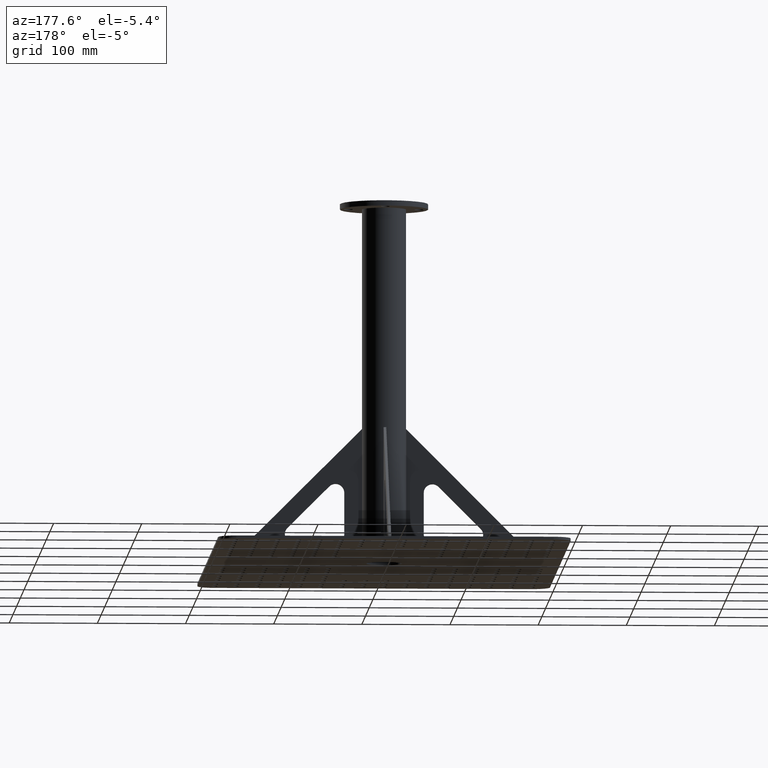
[diagram: clean part render]
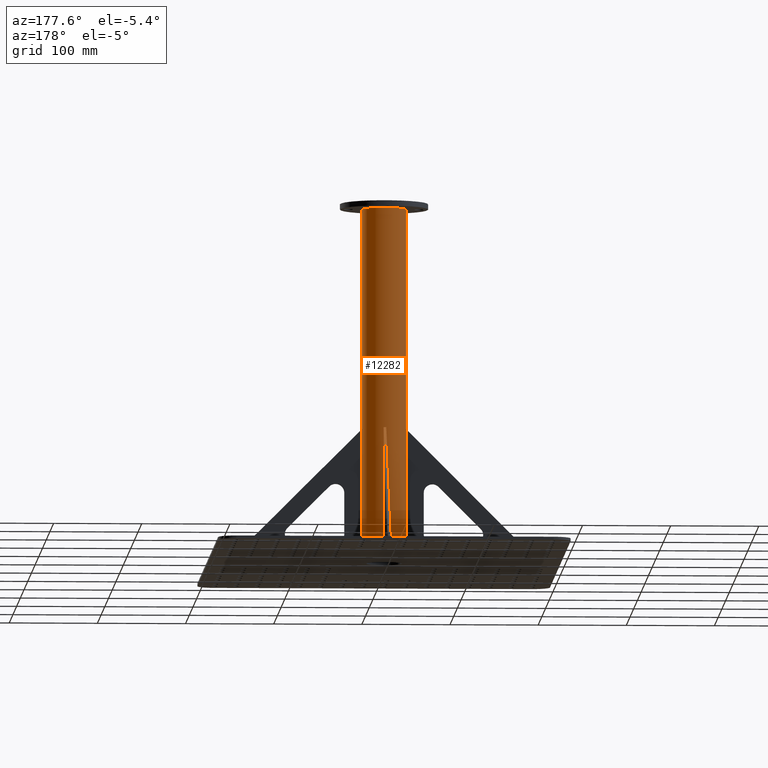
[diagram: same view with one face highlighted and labeled with its STEP entity id]
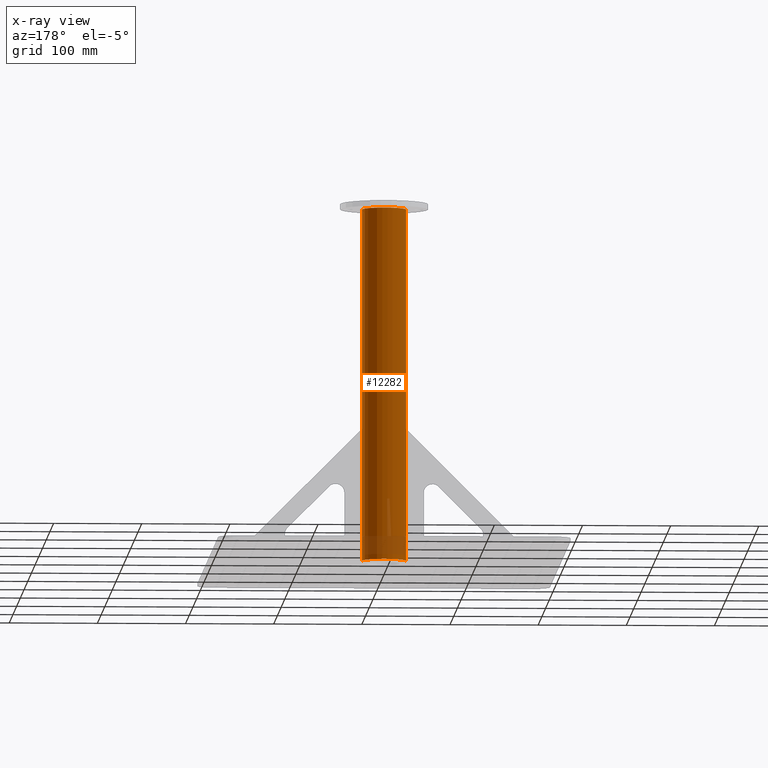
[diagram: x-ray of the same camera — body ghosted, the highlighted face saturated]
A machine part, auxiliary view. The second image highlights one B-rep face of the part: STEP entity #12282.
The next image is the same camera in x-ray: the body ghosted, the highlighted face saturated — about 6% of this face is hidden behind the body in this view.
In plain terms, the highlighted cylindrical surface (edge-blend (fillet) strip) has radius 25 mm, axis along (-0, -0, -1).
Its self-contained STEP definition (entity closure, byte-faithful):
#84 = ORIENTED_EDGE ( 'NONE', *, *, #11027, .T. ) ;
#308 = CARTESIAN_POINT ( 'NONE',  ( 0.0000000000000000000, 0.0000000000000000000, 400.0000000000000000 ) ) ;
#479 = ORIENTED_EDGE ( 'NONE', *, *, #8105, .F. ) ;
#1276 = LINE ( 'NONE', #14442, #4678 ) ;
#1979 = DIRECTION ( 'NONE',  ( 1.000000000000000000, 0.0000000000000000000, 0.0000000000000000000 ) ) ;
#3982 = CARTESIAN_POINT ( 'NONE',  ( 0.0000000000000000000, 0.0000000000000000000, 0.0000000000000000000 ) ) ;
#4013 = ORIENTED_EDGE ( 'NONE', *, *, #19607, .F. ) ;
#4118 = CARTESIAN_POINT ( 'NONE',  ( -25.00000000000000000, 0.0000000000000000000, 400.0000000000000000 ) ) ;
#4678 = VECTOR ( 'NONE', #11144, 1000.000000000000000 ) ;
#5400 = CYLINDRICAL_SURFACE ( 'NONE', #7143, 25.00000000000000000 ) ;
#5664 = DIRECTION ( 'NONE',  ( 1.000000000000000000, 0.0000000000000000000, 0.0000000000000000000 ) ) ;
#6693 = DIRECTION ( 'NONE',  ( -0.0000000000000000000, -0.0000000000000000000, -1.000000000000000000 ) ) ;
#7143 = AXIS2_PLACEMENT_3D ( 'NONE', #16690, #6693, #9980 ) ;
#7571 = LINE ( 'NONE', #19386, #17027 ) ;
#8105 = EDGE_CURVE ( 'NONE', #10918, #18881, #7571, .T. ) ;
#8864 = CARTESIAN_POINT ( 'NONE',  ( 25.00000000000000000, 3.061616997868383000E-015, 0.0000000000000000000 ) ) ;
#9330 = CIRCLE ( 'NONE', #19335, 25.00000000000000000 ) ;
#9393 = CIRCLE ( 'NONE', #13931, 25.00000000000000000 ) ;
#9980 = DIRECTION ( 'NONE',  ( -1.000000000000000000, 0.0000000000000000000, 0.0000000000000000000 ) ) ;
#10578 = ORIENTED_EDGE ( 'NONE', *, *, #18100, .T. ) ;
#10918 = VERTEX_POINT ( 'NONE', #4118 ) ;
#11027 = EDGE_CURVE ( 'NONE', #12987, #20166, #1276, .T. ) ;
#11144 = DIRECTION ( 'NONE',  ( -0.0000000000000000000, -0.0000000000000000000, -1.000000000000000000 ) ) ;
#12025 = DIRECTION ( 'NONE',  ( 0.0000000000000000000, 0.0000000000000000000, 1.000000000000000000 ) ) ;
#12282 = ADVANCED_FACE ( 'NONE', ( #14851 ), #5400, .T. ) ;
#12615 = CARTESIAN_POINT ( 'NONE',  ( 25.00000000000000000, 3.061616997868383000E-015, 400.0000000000000000 ) ) ;
#12987 = VERTEX_POINT ( 'NONE', #12615 ) ;
#13084 = CARTESIAN_POINT ( 'NONE',  ( -25.00000000000000000, 0.0000000000000000000, 0.0000000000000000000 ) ) ;
#13931 = AXIS2_PLACEMENT_3D ( 'NONE', #3982, #15731, #5664 ) ;
#14442 = CARTESIAN_POINT ( 'NONE',  ( 25.00000000000000000, 3.061616997868383000E-015, 400.0000000000000000 ) ) ;
#14851 = FACE_OUTER_BOUND ( 'NONE', #15150, .T. ) ;
#15150 = EDGE_LOOP ( 'NONE', ( #4013, #84, #10578, #479 ) ) ;
#15731 = DIRECTION ( 'NONE',  ( 0.0000000000000000000, 0.0000000000000000000, 1.000000000000000000 ) ) ;
#15900 = DIRECTION ( 'NONE',  ( -0.0000000000000000000, -0.0000000000000000000, -1.000000000000000000 ) ) ;
#16690 = CARTESIAN_POINT ( 'NONE',  ( 0.0000000000000000000, 0.0000000000000000000, 400.0000000000000000 ) ) ;
#17027 = VECTOR ( 'NONE', #15900, 1000.000000000000000 ) ;
#18100 = EDGE_CURVE ( 'NONE', #20166, #18881, #9393, .T. ) ;
#18881 = VERTEX_POINT ( 'NONE', #13084 ) ;
#19335 = AXIS2_PLACEMENT_3D ( 'NONE', #308, #12025, #1979 ) ;
#19386 = CARTESIAN_POINT ( 'NONE',  ( -25.00000000000000000, 0.0000000000000000000, 400.0000000000000000 ) ) ;
#19607 = EDGE_CURVE ( 'NONE', #12987, #10918, #9330, .T. ) ;
#20166 = VERTEX_POINT ( 'NONE', #8864 ) ;